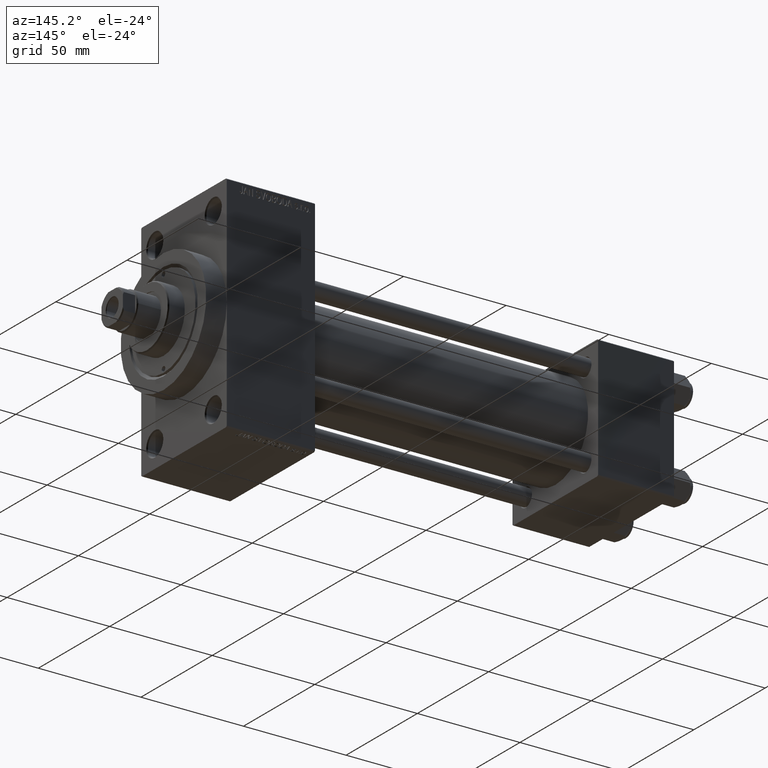
[diagram: clean part render]
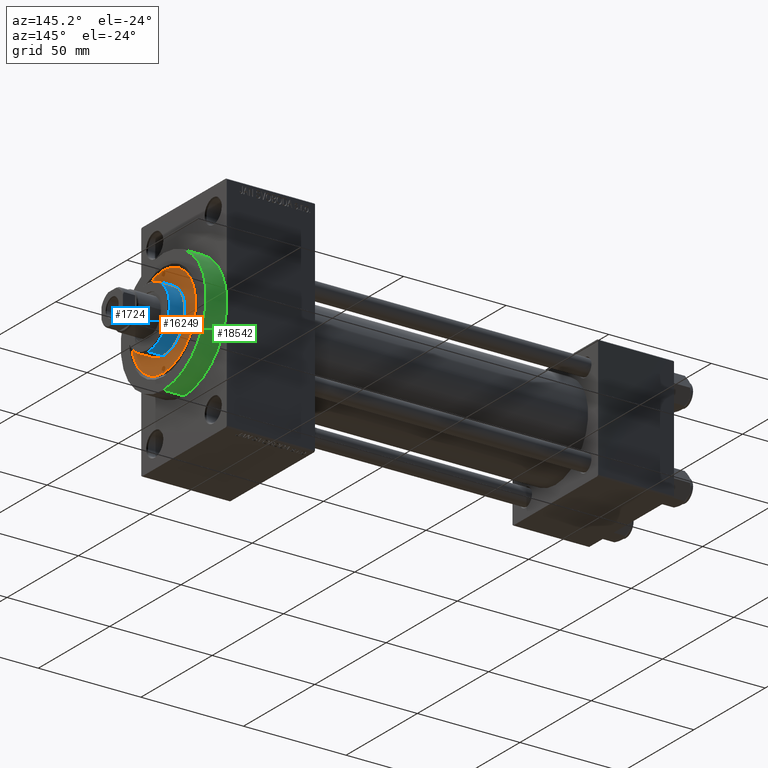
[diagram: same view with three faces highlighted in distinct colors, each labeled with its STEP entity id]
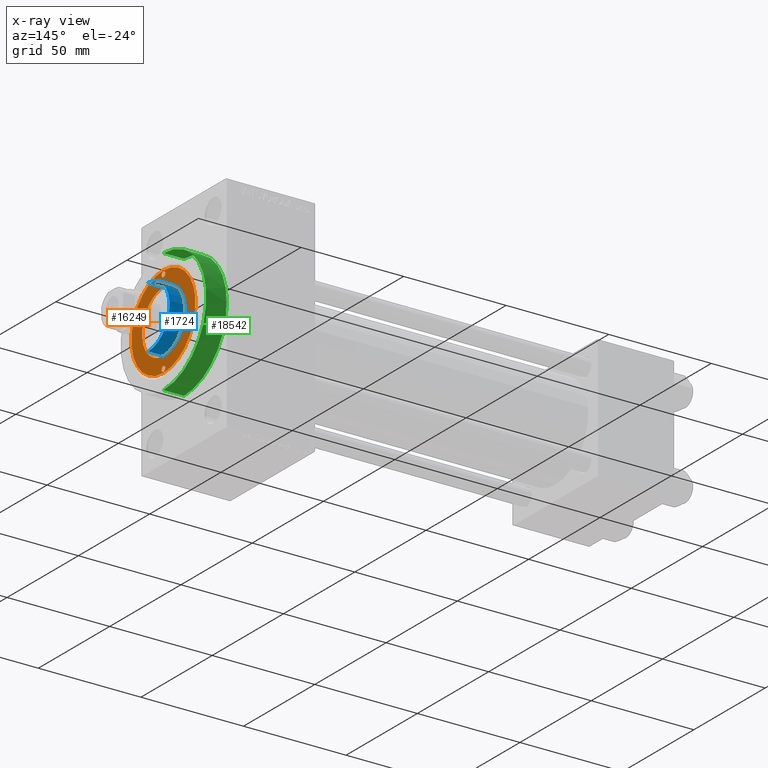
[diagram: x-ray of the same camera — body ghosted, the three highlighted faces saturated]
A machine part, auxiliary view with three faces highlighted in distinct colors.
The next image is the same camera in x-ray (body ghosted, the three faces saturated) — at least one of them is partly hidden behind the body in this view.
Their STEP definitions:

[orange] entity #16249 — the highlighted planar face has unit normal (1, -0, -0).
#119 = CARTESIAN_POINT ( 'NONE',  ( 0.000000000000000000, 0.000000000000000000, 43.25999999999999801 ) ) ;
#127 = CIRCLE ( 'NONE', #46870, 1.249999999999997558 ) ;
#147 = EDGE_CURVE ( 'NONE', #23820, #3997, #127, .T. ) ;
#433 = CARTESIAN_POINT ( 'NONE',  ( 15.00000000000000000, 1.836970198721029589E-15, 43.25999999999999801 ) ) ;
#859 = EDGE_LOOP ( 'NONE', ( #10546, #8384 ) ) ;
#1179 = VERTEX_POINT ( 'NONE', #30630 ) ;
#1322 = AXIS2_PLACEMENT_3D ( 'NONE', #30303, #19266, #19027 ) ;
#1557 = AXIS2_PLACEMENT_3D ( 'NONE', #16634, #20942, #35590 ) ;
#1577 = VERTEX_POINT ( 'NONE', #9694 ) ;
#2400 = AXIS2_PLACEMENT_3D ( 'NONE', #26115, #34254, #15077 ) ;
#2444 = EDGE_CURVE ( 'NONE', #1179, #1577, #11715, .T. ) ;
#3997 = VERTEX_POINT ( 'NONE', #13286 ) ;
#5012 = DIRECTION ( 'NONE',  ( 1.000000000000000000, 0.000000000000000000, 0.000000000000000000 ) ) ;
#8150 = DIRECTION ( 'NONE',  ( -0.000000000000000000, -0.000000000000000000, 1.000000000000000000 ) ) ;
#8384 = ORIENTED_EDGE ( 'NONE', *, *, #46628, .T. ) ;
#9694 = CARTESIAN_POINT ( 'NONE',  ( 22.50000000000000355, 2.755455298081545172E-15, 43.25999999999999801 ) ) ;
#10546 = ORIENTED_EDGE ( 'NONE', *, *, #2444, .T. ) ;
#11171 = DIRECTION ( 'NONE',  ( 0.000000000000000000, 0.000000000000000000, 1.000000000000000000 ) ) ;
#11715 = CIRCLE ( 'NONE', #38513, 22.50000000000000355 ) ;
#12071 = FACE_BOUND ( 'NONE', #20790, .T. ) ;
#12276 = CIRCLE ( 'NONE', #39103, 15.00000000000000000 ) ;
#12869 = CARTESIAN_POINT ( 'NONE',  ( -20.75000000000000000, 0.000000000000000000, 43.25999999999999801 ) ) ;
#13286 = CARTESIAN_POINT ( 'NONE',  ( -22.00000000000000000, 1.530808498934188612E-16, 43.25999999999999801 ) ) ;
#13839 = DIRECTION ( 'NONE',  ( 1.000000000000000000, 0.000000000000000000, 0.000000000000000000 ) ) ;
#15077 = DIRECTION ( 'NONE',  ( 1.000000000000000000, 0.000000000000000000, 0.000000000000000000 ) ) ;
#15078 = ORIENTED_EDGE ( 'NONE', *, *, #34343, .F. ) ;
#16136 = FACE_OUTER_BOUND ( 'NONE', #859, .T. ) ;
#16161 = CIRCLE ( 'NONE', #2400, 1.249999999999997558 ) ;
#16249 = ADVANCED_FACE ( 'NONE', ( #44464, #12071, #37267, #16136 ), #41095, .T. ) ;
#16396 = VERTEX_POINT ( 'NONE', #24281 ) ;
#16634 = CARTESIAN_POINT ( 'NONE',  ( 20.75000000000000000, 0.000000000000000000, 43.25999999999999801 ) ) ;
#19027 = DIRECTION ( 'NONE',  ( 1.000000000000000000, 0.000000000000000000, -0.000000000000000000 ) ) ;
#19266 = DIRECTION ( 'NONE',  ( 0.000000000000000000, 0.000000000000000000, 1.000000000000000000 ) ) ;
#19324 = VERTEX_POINT ( 'NONE', #42263 ) ;
#19903 = CIRCLE ( 'NONE', #1557, 1.249999999999997558 ) ;
#20661 = CARTESIAN_POINT ( 'NONE',  ( 0.000000000000000000, 0.000000000000000000, 43.25999999999999801 ) ) ;
#20790 = EDGE_LOOP ( 'NONE', ( #32726, #43590 ) ) ;
#20942 = DIRECTION ( 'NONE',  ( -0.000000000000000000, -0.000000000000000000, 1.000000000000000000 ) ) ;
#21375 = CIRCLE ( 'NONE', #22135, 1.249999999999997558 ) ;
#21700 = CIRCLE ( 'NONE', #40924, 22.50000000000000355 ) ;
#21739 = VERTEX_POINT ( 'NONE', #433 ) ;
#22135 = AXIS2_PLACEMENT_3D ( 'NONE', #12869, #27501, #27035 ) ;
#23820 = VERTEX_POINT ( 'NONE', #28380 ) ;
#24240 = ORIENTED_EDGE ( 'NONE', *, *, #24345, .F. ) ;
#24281 = CARTESIAN_POINT ( 'NONE',  ( -15.00000000000000000, 0.000000000000000000, 43.25999999999999801 ) ) ;
#24345 = EDGE_CURVE ( 'NONE', #16396, #21739, #12276, .T. ) ;
#24506 = DIRECTION ( 'NONE',  ( 0.000000000000000000, 0.000000000000000000, 1.000000000000000000 ) ) ;
#25277 = AXIS2_PLACEMENT_3D ( 'NONE', #34415, #45433, #37528 ) ;
#25374 = EDGE_LOOP ( 'NONE', ( #24240, #15078 ) ) ;
#25566 = EDGE_CURVE ( 'NONE', #3997, #23820, #21375, .T. ) ;
#26115 = CARTESIAN_POINT ( 'NONE',  ( 20.75000000000000000, 0.000000000000000000, 43.25999999999999801 ) ) ;
#27035 = DIRECTION ( 'NONE',  ( 1.000000000000000000, 0.000000000000000000, 0.000000000000000000 ) ) ;
#27501 = DIRECTION ( 'NONE',  ( -0.000000000000000000, -0.000000000000000000, 1.000000000000000000 ) ) ;
#28380 = CARTESIAN_POINT ( 'NONE',  ( -19.50000000000000355, 0.000000000000000000, 43.25999999999999801 ) ) ;
#29780 = ORIENTED_EDGE ( 'NONE', *, *, #147, .F. ) ;
#30303 = CARTESIAN_POINT ( 'NONE',  ( 0.000000000000000000, 0.000000000000000000, 43.25999999999999801 ) ) ;
#30630 = CARTESIAN_POINT ( 'NONE',  ( -22.50000000000000355, 0.000000000000000000, 43.25999999999999801 ) ) ;
#32726 = ORIENTED_EDGE ( 'NONE', *, *, #40815, .F. ) ;
#33860 = VERTEX_POINT ( 'NONE', #35251 ) ;
#34254 = DIRECTION ( 'NONE',  ( -0.000000000000000000, -0.000000000000000000, 1.000000000000000000 ) ) ;
#34343 = EDGE_CURVE ( 'NONE', #21739, #16396, #45963, .T. ) ;
#34415 = CARTESIAN_POINT ( 'NONE',  ( 0.000000000000000000, 0.000000000000000000, 43.25999999999999801 ) ) ;
#34519 = EDGE_CURVE ( 'NONE', #33860, #19324, #19903, .T. ) ;
#34972 = CARTESIAN_POINT ( 'NONE',  ( 0.000000000000000000, 0.000000000000000000, 43.25999999999999801 ) ) ;
#35251 = CARTESIAN_POINT ( 'NONE',  ( 19.50000000000000355, 1.530808498934188612E-16, 43.25999999999999801 ) ) ;
#35590 = DIRECTION ( 'NONE',  ( 1.000000000000000000, 0.000000000000000000, 0.000000000000000000 ) ) ;
#35683 = DIRECTION ( 'NONE',  ( 0.000000000000000000, 0.000000000000000000, 1.000000000000000000 ) ) ;
#36119 = DIRECTION ( 'NONE',  ( 1.000000000000000000, 0.000000000000000000, 0.000000000000000000 ) ) ;
#37267 = FACE_BOUND ( 'NONE', #25374, .T. ) ;
#37528 = DIRECTION ( 'NONE',  ( 1.000000000000000000, 0.000000000000000000, 0.000000000000000000 ) ) ;
#37883 = CARTESIAN_POINT ( 'NONE',  ( -20.75000000000000000, 0.000000000000000000, 43.25999999999999801 ) ) ;
#38513 = AXIS2_PLACEMENT_3D ( 'NONE', #20661, #24506, #38899 ) ;
#38899 = DIRECTION ( 'NONE',  ( 1.000000000000000000, 0.000000000000000000, 0.000000000000000000 ) ) ;
#39103 = AXIS2_PLACEMENT_3D ( 'NONE', #119, #11171, #36119 ) ;
#39122 = EDGE_LOOP ( 'NONE', ( #29780, #47194 ) ) ;
#40815 = EDGE_CURVE ( 'NONE', #19324, #33860, #16161, .T. ) ;
#40924 = AXIS2_PLACEMENT_3D ( 'NONE', #34972, #35683, #13839 ) ;
#41095 = PLANE ( 'NONE',  #1322 ) ;
#42263 = CARTESIAN_POINT ( 'NONE',  ( 22.00000000000000000, 0.000000000000000000, 43.25999999999999801 ) ) ;
#43590 = ORIENTED_EDGE ( 'NONE', *, *, #34519, .F. ) ;
#44464 = FACE_BOUND ( 'NONE', #39122, .T. ) ;
#45433 = DIRECTION ( 'NONE',  ( 0.000000000000000000, 0.000000000000000000, 1.000000000000000000 ) ) ;
#45963 = CIRCLE ( 'NONE', #25277, 15.00000000000000000 ) ;
#46628 = EDGE_CURVE ( 'NONE', #1577, #1179, #21700, .T. ) ;
#46870 = AXIS2_PLACEMENT_3D ( 'NONE', #37883, #8150, #5012 ) ;
#47194 = ORIENTED_EDGE ( 'NONE', *, *, #25566, .F. ) ;

[blue] entity #1724 — the highlighted cylindrical surface (partial cylindrical patch) has radius 15 mm, axis along (-1, 0, 0).
#119 = CARTESIAN_POINT ( 'NONE',  ( 0.000000000000000000, 0.000000000000000000, 43.25999999999999801 ) ) ;
#421 = CARTESIAN_POINT ( 'NONE',  ( 15.00000000000000000, 1.836970198721029589E-15, 51.25999999999999801 ) ) ;
#433 = CARTESIAN_POINT ( 'NONE',  ( 15.00000000000000000, 1.836970198721029589E-15, 43.25999999999999801 ) ) ;
#1040 = EDGE_CURVE ( 'NONE', #38201, #21739, #18413, .T. ) ;
#1191 = CARTESIAN_POINT ( 'NONE',  ( 0.000000000000000000, 0.000000000000000000, 51.25999999999999801 ) ) ;
#1724 = ADVANCED_FACE ( 'NONE', ( #34064 ), #38362, .T. ) ;
#1765 = CARTESIAN_POINT ( 'NONE',  ( 0.000000000000000000, 0.000000000000000000, 50.75999999999998380 ) ) ;
#7094 = CIRCLE ( 'NONE', #11685, 15.00000000000000000 ) ;
#9873 = CARTESIAN_POINT ( 'NONE',  ( 15.00000000000000000, 1.836970198721029589E-15, 50.75999999999998380 ) ) ;
#11171 = DIRECTION ( 'NONE',  ( 0.000000000000000000, 0.000000000000000000, 1.000000000000000000 ) ) ;
#11685 = AXIS2_PLACEMENT_3D ( 'NONE', #1765, #20223, #16160 ) ;
#12276 = CIRCLE ( 'NONE', #39103, 15.00000000000000000 ) ;
#12459 = DIRECTION ( 'NONE',  ( -1.000000000000000000, 0.000000000000000000, 0.000000000000000000 ) ) ;
#13777 = EDGE_LOOP ( 'NONE', ( #28192, #14560, #14781, #14064 ) ) ;
#14064 = ORIENTED_EDGE ( 'NONE', *, *, #24345, .T. ) ;
#14560 = ORIENTED_EDGE ( 'NONE', *, *, #44133, .T. ) ;
#14781 = ORIENTED_EDGE ( 'NONE', *, *, #38128, .T. ) ;
#15348 = VECTOR ( 'NONE', #23076, 1000.000000000000000 ) ;
#16160 = DIRECTION ( 'NONE',  ( 1.000000000000000000, 0.000000000000000000, 0.000000000000000000 ) ) ;
#16396 = VERTEX_POINT ( 'NONE', #24281 ) ;
#18413 = LINE ( 'NONE', #421, #42277 ) ;
#20223 = DIRECTION ( 'NONE',  ( 0.000000000000000000, 0.000000000000000000, -1.000000000000000000 ) ) ;
#21612 = VERTEX_POINT ( 'NONE', #28517 ) ;
#21739 = VERTEX_POINT ( 'NONE', #433 ) ;
#23076 = DIRECTION ( 'NONE',  ( -0.000000000000000000, -0.000000000000000000, -1.000000000000000000 ) ) ;
#23309 = CARTESIAN_POINT ( 'NONE',  ( -15.00000000000000000, 0.000000000000000000, 51.25999999999999801 ) ) ;
#24281 = CARTESIAN_POINT ( 'NONE',  ( -15.00000000000000000, 0.000000000000000000, 43.25999999999999801 ) ) ;
#24345 = EDGE_CURVE ( 'NONE', #16396, #21739, #12276, .T. ) ;
#25617 = DIRECTION ( 'NONE',  ( -0.000000000000000000, -0.000000000000000000, -1.000000000000000000 ) ) ;
#28192 = ORIENTED_EDGE ( 'NONE', *, *, #1040, .F. ) ;
#28517 = CARTESIAN_POINT ( 'NONE',  ( -15.00000000000000000, 0.000000000000000000, 50.75999999999998380 ) ) ;
#33234 = LINE ( 'NONE', #23309, #15348 ) ;
#34064 = FACE_OUTER_BOUND ( 'NONE', #13777, .T. ) ;
#36119 = DIRECTION ( 'NONE',  ( 1.000000000000000000, 0.000000000000000000, 0.000000000000000000 ) ) ;
#38128 = EDGE_CURVE ( 'NONE', #21612, #16396, #33234, .T. ) ;
#38201 = VERTEX_POINT ( 'NONE', #9873 ) ;
#38362 = CYLINDRICAL_SURFACE ( 'NONE', #44620, 15.00000000000000000 ) ;
#39103 = AXIS2_PLACEMENT_3D ( 'NONE', #119, #11171, #36119 ) ;
#42277 = VECTOR ( 'NONE', #25617, 1000.000000000000000 ) ;
#44133 = EDGE_CURVE ( 'NONE', #38201, #21612, #7094, .T. ) ;
#44620 = AXIS2_PLACEMENT_3D ( 'NONE', #1191, #45558, #12459 ) ;
#45558 = DIRECTION ( 'NONE',  ( -0.000000000000000000, -0.000000000000000000, -1.000000000000000000 ) ) ;

[green] entity #18542 — the highlighted cylindrical surface (partial cylindrical patch) has radius 30 mm, axis along (-1, -0, -0).
#965 = AXIS2_PLACEMENT_3D ( 'NONE', #10012, #21256, #43327 ) ;
#1102 = VERTEX_POINT ( 'NONE', #44318 ) ;
#1780 = AXIS2_PLACEMENT_3D ( 'NONE', #37012, #15405, #25497 ) ;
#2753 = EDGE_CURVE ( 'NONE', #46879, #32352, #7881, .T. ) ;
#4474 = ORIENTED_EDGE ( 'NONE', *, *, #7991, .F. ) ;
#5661 = DIRECTION ( 'NONE',  ( -1.000000000000000000, -0.000000000000000000, -0.000000000000000000 ) ) ;
#5883 = ORIENTED_EDGE ( 'NONE', *, *, #45146, .T. ) ;
#6572 = AXIS2_PLACEMENT_3D ( 'NONE', #44241, #41112, #26018 ) ;
#7879 = CARTESIAN_POINT ( 'NONE',  ( 228.0000000000000284, 0.000000000000000000, 0.000000000000000000 ) ) ;
#7881 = CIRCLE ( 'NONE', #965, 30.00000000000000000 ) ;
#7991 = EDGE_CURVE ( 'NONE', #32352, #1102, #15509, .T. ) ;
#8671 = CIRCLE ( 'NONE', #1780, 30.00000000000000000 ) ;
#9704 = EDGE_CURVE ( 'NONE', #10491, #26713, #34922, .T. ) ;
#10012 = CARTESIAN_POINT ( 'NONE',  ( 228.0000000000000284, 0.000000000000000000, 0.000000000000000000 ) ) ;
#10350 = VECTOR ( 'NONE', #5661, 1000.000000000000000 ) ;
#10491 = VERTEX_POINT ( 'NONE', #36342 ) ;
#10505 = VECTOR ( 'NONE', #36153, 1000.000000000000000 ) ;
#10968 = LINE ( 'NONE', #17683, #10505 ) ;
#12649 = FACE_OUTER_BOUND ( 'NONE', #36869, .T. ) ;
#13648 = ORIENTED_EDGE ( 'NONE', *, *, #17036, .T. ) ;
#15405 = DIRECTION ( 'NONE',  ( 1.000000000000000000, 0.000000000000000000, 0.000000000000000000 ) ) ;
#15509 = LINE ( 'NONE', #30153, #10350 ) ;
#17036 = EDGE_CURVE ( 'NONE', #46879, #10491, #10968, .T. ) ;
#17683 = CARTESIAN_POINT ( 'NONE',  ( 228.0000000000000284, 3.673940397442059178E-15, -30.00000000000000000 ) ) ;
#18542 = ADVANCED_FACE ( 'NONE', ( #12649 ), #40734, .T. ) ;
#18984 = AXIS2_PLACEMENT_3D ( 'NONE', #7879, #24627, #24158 ) ;
#21256 = DIRECTION ( 'NONE',  ( 1.000000000000000000, 0.000000000000000000, 0.000000000000000000 ) ) ;
#24069 = CARTESIAN_POINT ( 'NONE',  ( 228.0000000000000284, 0.000000000000000000, 30.00000000000000000 ) ) ;
#24158 = DIRECTION ( 'NONE',  ( 0.000000000000000000, 0.000000000000000000, 1.000000000000000000 ) ) ;
#24583 = CARTESIAN_POINT ( 'NONE',  ( 228.0000000000000284, 3.673940397442059178E-15, -30.00000000000000000 ) ) ;
#24627 = DIRECTION ( 'NONE',  ( -1.000000000000000000, -0.000000000000000000, -0.000000000000000000 ) ) ;
#25497 = DIRECTION ( 'NONE',  ( 0.000000000000000000, 0.000000000000000000, -1.000000000000000000 ) ) ;
#26018 = DIRECTION ( 'NONE',  ( 0.000000000000000000, 0.000000000000000000, -1.000000000000000000 ) ) ;
#26713 = VERTEX_POINT ( 'NONE', #28068 ) ;
#28068 = CARTESIAN_POINT ( 'NONE',  ( 218.0000000000000284, 30.00000000000000000, 0.000000000000000000 ) ) ;
#30153 = CARTESIAN_POINT ( 'NONE',  ( 228.0000000000000284, 0.000000000000000000, 30.00000000000000000 ) ) ;
#32352 = VERTEX_POINT ( 'NONE', #24069 ) ;
#33359 = ORIENTED_EDGE ( 'NONE', *, *, #2753, .F. ) ;
#34922 = CIRCLE ( 'NONE', #6572, 30.00000000000000000 ) ;
#36153 = DIRECTION ( 'NONE',  ( -1.000000000000000000, -0.000000000000000000, -0.000000000000000000 ) ) ;
#36342 = CARTESIAN_POINT ( 'NONE',  ( 218.0000000000000284, 3.673940397442059178E-15, -30.00000000000000000 ) ) ;
#36869 = EDGE_LOOP ( 'NONE', ( #33359, #13648, #45371, #5883, #4474 ) ) ;
#37012 = CARTESIAN_POINT ( 'NONE',  ( 218.0000000000000284, 0.000000000000000000, 0.000000000000000000 ) ) ;
#40734 = CYLINDRICAL_SURFACE ( 'NONE', #18984, 30.00000000000000000 ) ;
#41112 = DIRECTION ( 'NONE',  ( 1.000000000000000000, 0.000000000000000000, 0.000000000000000000 ) ) ;
#43327 = DIRECTION ( 'NONE',  ( 0.000000000000000000, 0.000000000000000000, -1.000000000000000000 ) ) ;
#44241 = CARTESIAN_POINT ( 'NONE',  ( 218.0000000000000284, 0.000000000000000000, 0.000000000000000000 ) ) ;
#44318 = CARTESIAN_POINT ( 'NONE',  ( 218.0000000000000284, 0.000000000000000000, 30.00000000000000000 ) ) ;
#45146 = EDGE_CURVE ( 'NONE', #26713, #1102, #8671, .T. ) ;
#45371 = ORIENTED_EDGE ( 'NONE', *, *, #9704, .T. ) ;
#46879 = VERTEX_POINT ( 'NONE', #24583 ) ;